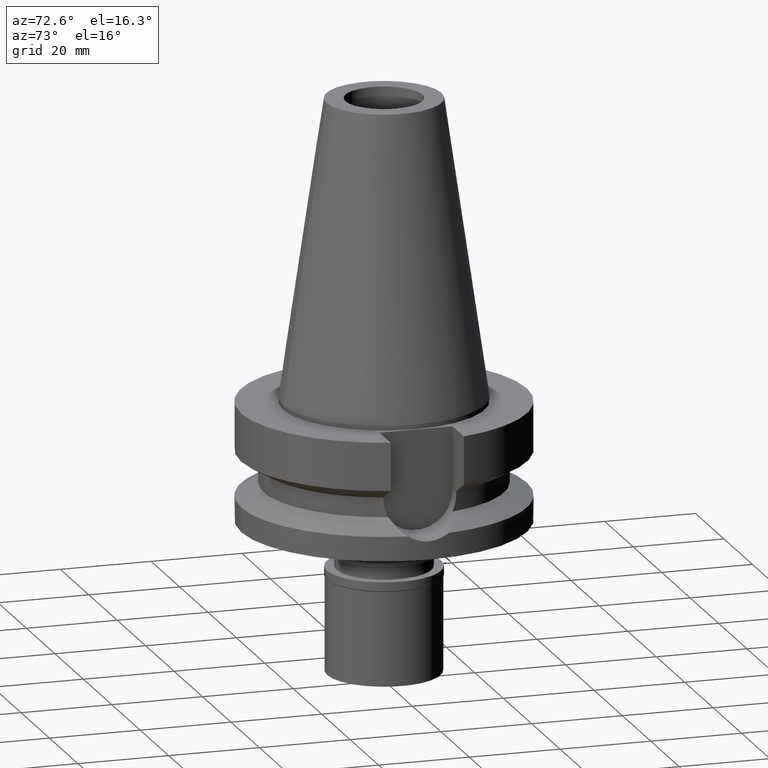
[diagram: clean part render]
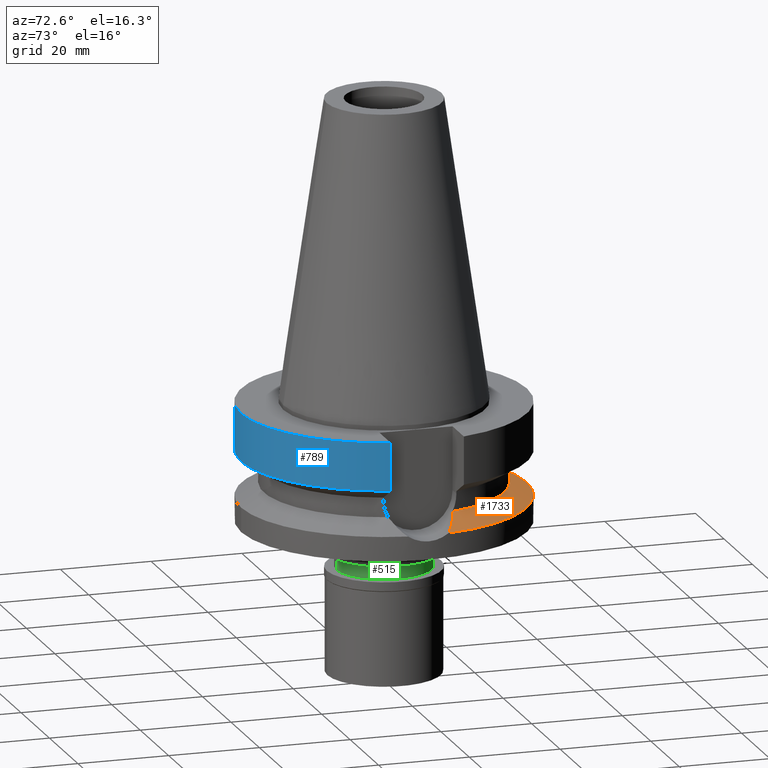
[diagram: same view with three faces highlighted in distinct colors, each labeled with its STEP entity id]
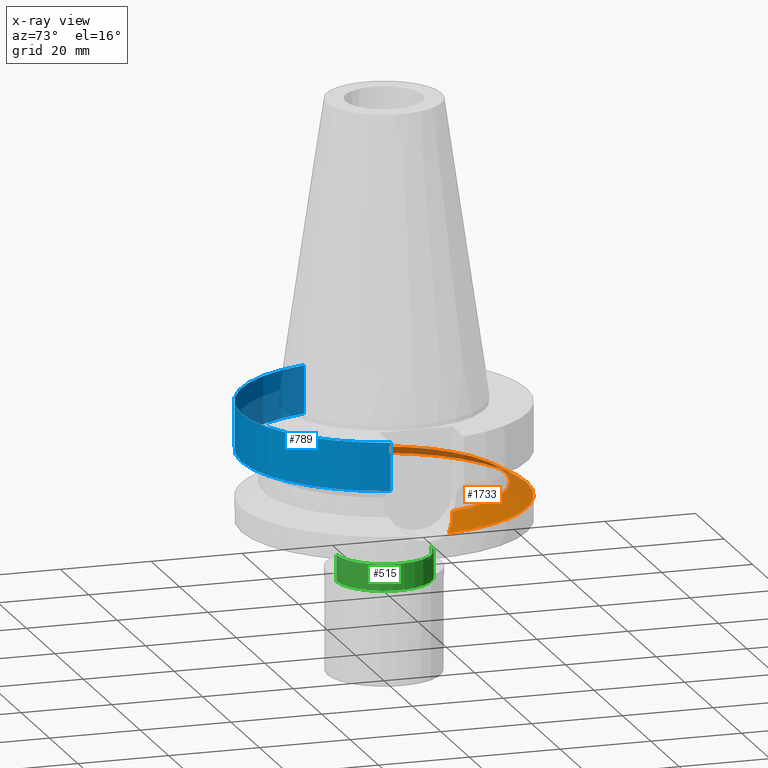
[diagram: x-ray of the same camera — body ghosted, the three highlighted faces saturated]
A machine part, auxiliary view with three faces highlighted in distinct colors.
The next image is the same camera in x-ray (body ghosted, the three faces saturated) — at least one of them is partly hidden behind the body in this view.
Their STEP definitions:

[orange] entity #1733 — the highlighted conical surface has half-angle 60 deg.
#15 = VERTEX_POINT ( 'NONE', #1489 ) ;
#144 = DIRECTION ( 'NONE',  ( 0.0000000000000000000, 0.0000000000000000000, -1.000000000000000000 ) ) ;
#193 = CARTESIAN_POINT ( 'NONE',  ( 28.91478631544401878, 5.849822157289450431, -20.48014178983326872 ) ) ;
#214 = CARTESIAN_POINT ( 'NONE',  ( 25.53175183775000079, 7.097862220092999941, -18.74774300138999905 ) ) ;
#234 = CARTESIAN_POINT ( 'NONE',  ( -28.25313355432080442, 6.152255097921550231, -20.14224581000085124 ) ) ;
#268 = CARTESIAN_POINT ( 'NONE',  ( -31.17899877608999759, 4.485536235554000051, -21.63449434733000132 ) ) ;
#282 = DIRECTION ( 'NONE',  ( 0.9634623335000935818, 0.2678438573619981722, 0.0000000000000000000 ) ) ;
#298 = FACE_OUTER_BOUND ( 'NONE', #629, .T. ) ;
#394 = CARTESIAN_POINT ( 'NONE',  ( 29.24626334610218592, 5.685961615946967029, -20.64939187237719764 ) ) ;
#410 = CARTESIAN_POINT ( 'NONE',  ( 28.97068289350773895, 5.822706596081250296, -20.50868468106680353 ) ) ;
#421 = CARTESIAN_POINT ( 'NONE',  ( 31.17899877608999759, 4.485536235554000051, -21.63449434733000132 ) ) ;
#422 = B_SPLINE_CURVE_WITH_KNOTS ( 'NONE', 3,
 ( #1644, #2547, #2321, #469, #1615, #234, #1408, #3003, #2560, #1892, #918, #2293, #1833, #268 ),
 .UNSPECIFIED., .F., .F.,
 ( 4, 2, 2, 1, 1, 2, 2, 4 ),
 ( 0.0000000000000000000, 0.2500000000000014433, 0.3750000000000021649, 0.4375000000000031086, 0.4687500000000041078, 0.4843750000000042744, 0.5000000000000044409, 1.000000000000000000 ),
 .UNSPECIFIED. ) ;
#469 = CARTESIAN_POINT ( 'NONE',  ( -27.60385672569581317, 6.419486547621249706, -19.81038864997361415 ) ) ;
#629 = EDGE_LOOP ( 'NONE', ( #2817, #1896, #1777, #2706, #1988 ) ) ;
#634 = CARTESIAN_POINT ( 'NONE',  ( 29.92206128542832744, 5.319128670246277224, -20.99422307461593817 ) ) ;
#668 = CARTESIAN_POINT ( 'NONE',  ( 25.53175183775000079, 7.097862220092999941, -18.74774300138999905 ) ) ;
#718 = VERTEX_POINT ( 'NONE', #421 ) ;
#786 = EDGE_CURVE ( 'NONE', #2302, #1302, #422, .T. ) ;
#858 = CARTESIAN_POINT ( 'NONE',  ( -25.53175183775000079, 7.097862220092999941, -18.74774300138999905 ) ) ;
#874 = CARTESIAN_POINT ( 'NONE',  ( 30.85670415875407002, 4.730051056448920654, -21.47041610412382795 ) ) ;
#904 = CARTESIAN_POINT ( 'NONE',  ( -31.17899877608999759, 4.485536235554000051, -21.63449434733000132 ) ) ;
#918 = CARTESIAN_POINT ( 'NONE',  ( -28.83039644676051694, 5.890263416114171591, -20.43704710765186405 ) ) ;
#1008 = DIRECTION ( 'NONE',  ( 0.0000000000000000000, 0.0000000000000000000, -1.000000000000000000 ) ) ;
#1091 = CARTESIAN_POINT ( 'NONE',  ( 31.17899877608999759, 4.485536235554000051, -21.63449434733000132 ) ) ;
#1225 = DIRECTION ( 'NONE',  ( 0.0000000000000000000, 0.0000000000000000000, -1.000000000000000000 ) ) ;
#1273 = CIRCLE ( 'NONE', #2829, 31.50000000000000000 ) ;
#1302 = VERTEX_POINT ( 'NONE', #904 ) ;
#1355 = CARTESIAN_POINT ( 'NONE',  ( 0.0000000000000000000, 0.0000000000000000000, -21.63449434733000132 ) ) ;
#1407 = CARTESIAN_POINT ( 'NONE',  ( 0.0000000000000000000, 0.0000000000000000000, -18.74774300138999905 ) ) ;
#1408 = CARTESIAN_POINT ( 'NONE',  ( -28.44052274112972967, 6.070588432732742845, -20.23795974215284588 ) ) ;
#1489 = CARTESIAN_POINT ( 'NONE',  ( 0.0000000000000000000, 31.50000000000000000, -21.63449434733000132 ) ) ;
#1519 = CONICAL_SURFACE ( 'NONE', #2791, 29.00000000000000000, 1.047197551196400456 ) ;
#1569 = AXIS2_PLACEMENT_3D ( 'NONE', #1407, #1912, #282 ) ;
#1610 = EDGE_CURVE ( 'NONE', #1302, #15, #2109, .T. ) ;
#1615 = CARTESIAN_POINT ( 'NONE',  ( -27.87013977872673109, 6.313923957001473575, -19.94654897211011857 ) ) ;
#1644 = CARTESIAN_POINT ( 'NONE',  ( -25.53175183775000079, 7.097862220092999941, -18.74774300138999905 ) ) ;
#1701 = DIRECTION ( 'NONE',  ( -0.9898094849552905306, 0.1423979757318985240, 0.0000000000000000000 ) ) ;
#1733 = ADVANCED_FACE ( 'NONE', ( #298 ), #1519, .T. ) ;
#1747 = CARTESIAN_POINT ( 'NONE',  ( 26.81595143041433360, 6.744857757718428104, -19.40749723859890707 ) ) ;
#1777 = ORIENTED_EDGE ( 'NONE', *, *, #2194, .F. ) ;
#1809 = CARTESIAN_POINT ( 'NONE',  ( 27.92487151186988825, 6.323143145587966529, -19.97462730608383907 ) ) ;
#1833 = CARTESIAN_POINT ( 'NONE',  ( -30.53441354985303846, 4.974562836271871902, -21.30633990158299085 ) ) ;
#1892 = CARTESIAN_POINT ( 'NONE',  ( -28.80006839025016774, 5.904654934862930915, -20.42156014913065931 ) ) ;
#1896 = ORIENTED_EDGE ( 'NONE', *, *, #2895, .F. ) ;
#1912 = DIRECTION ( 'NONE',  ( 0.0000000000000000000, 0.0000000000000000000, 1.000000000000000000 ) ) ;
#1921 = CARTESIAN_POINT ( 'NONE',  ( 0.0000000000000000000, 0.0000000000000000000, -20.19111867435999841 ) ) ;
#1988 = ORIENTED_EDGE ( 'NONE', *, *, #1610, .F. ) ;
#2109 = CIRCLE ( 'NONE', #2584, 31.50000000000001421 ) ;
#2171 = CARTESIAN_POINT ( 'NONE',  ( 0.0000000000000000000, 0.0000000000000000000, -21.63449434733000132 ) ) ;
#2174 = B_SPLINE_CURVE_WITH_KNOTS ( 'NONE', 3,
 ( #1091, #874, #2749, #634, #2283, #2224, #394, #2492, #410, #193, #2471, #1809, #1747, #668 ),
 .UNSPECIFIED., .F., .F.,
 ( 4, 2, 2, 1, 1, 2, 2, 4 ),
 ( 0.0000000000000000000, 0.2499999999999950595, 0.3749999999999922839, 0.4374999999999908407, 0.4687499999999901190, 0.4843749999999897304, 0.4999999999999892863, 1.000000000000000000 ),
 .UNSPECIFIED. ) ;
#2185 = EDGE_CURVE ( 'NONE', #15, #718, #1273, .T. ) ;
#2194 = EDGE_CURVE ( 'NONE', #718, #2329, #2174, .T. ) ;
#2224 = CARTESIAN_POINT ( 'NONE',  ( 29.40639997502073655, 5.602414900099955020, -20.73113018912559724 ) ) ;
#2283 = CARTESIAN_POINT ( 'NONE',  ( 29.72063074863976340, 5.433722149130143286, -20.89148462187506539 ) ) ;
#2293 = CARTESIAN_POINT ( 'NONE',  ( -29.76094559306956100, 5.445416657840067565, -20.91224353523194779 ) ) ;
#2302 = VERTEX_POINT ( 'NONE', #858 ) ;
#2321 = CARTESIAN_POINT ( 'NONE',  ( -26.77214595869841318, 6.727515509259808013, -19.38461120372449642 ) ) ;
#2329 = VERTEX_POINT ( 'NONE', #214 ) ;
#2471 = CARTESIAN_POINT ( 'NONE',  ( 28.88768834993686241, 5.862875148173405826, -20.46630415397853042 ) ) ;
#2492 = CARTESIAN_POINT ( 'NONE',  ( 29.05415010533970133, 5.781918893356821521, -20.55130490390079245 ) ) ;
#2547 = CARTESIAN_POINT ( 'NONE',  ( -26.17385663682730623, 6.921358613737098153, -19.07762269013936418 ) ) ;
#2560 = CARTESIAN_POINT ( 'NONE',  ( -28.74102841213726478, 5.932449547015266944, -20.39141183310676553 ) ) ;
#2584 = AXIS2_PLACEMENT_3D ( 'NONE', #2171, #1008, #1701 ) ;
#2706 = ORIENTED_EDGE ( 'NONE', *, *, #2185, .F. ) ;
#2749 = CARTESIAN_POINT ( 'NONE',  ( 30.50218295892166154, 4.969973324183234453, -21.28994595421204750 ) ) ;
#2791 = AXIS2_PLACEMENT_3D ( 'NONE', #1921, #1225, #2859 ) ;
#2817 = ORIENTED_EDGE ( 'NONE', *, *, #786, .F. ) ;
#2829 = AXIS2_PLACEMENT_3D ( 'NONE', #1355, #144, #2926 ) ;
#2859 = DIRECTION ( 'NONE',  ( 0.0000000000000000000, -1.000000000000000000, 0.0000000000000000000 ) ) ;
#2882 = CIRCLE ( 'NONE', #1569, 26.49999999999998224 ) ;
#2895 = EDGE_CURVE ( 'NONE', #2329, #2302, #2882, .T. ) ;
#2926 = DIRECTION ( 'NONE',  ( 0.0000000000000000000, 1.000000000000000000, 0.0000000000000000000 ) ) ;
#3003 = CARTESIAN_POINT ( 'NONE',  ( -28.65195498234436400, 5.974063165275939724, -20.34592761177406928 ) ) ;

[blue] entity #789 — the highlighted cylindrical surface (partial cylindrical patch) has radius 31.5 mm, axis along (0, 0, -1).
#143 = ORIENTED_EDGE ( 'NONE', *, *, #2363, .F. ) ;
#206 = FACE_OUTER_BOUND ( 'NONE', #937, .T. ) ;
#302 = LINE ( 'NONE', #756, #597 ) ;
#365 = DIRECTION ( 'NONE',  ( 1.862101846687989612E-08, -7.044556985951960840E-08, 0.9999999999999972244 ) ) ;
#572 = VERTEX_POINT ( 'NONE', #1972 ) ;
#597 = VECTOR ( 'NONE', #910, 1000.000000000000114 ) ;
#670 = VERTEX_POINT ( 'NONE', #1574 ) ;
#693 = CARTESIAN_POINT ( 'NONE',  ( 0.0000000000000000000, 0.0000000000000000000, -1.000000000000000000 ) ) ;
#715 = VERTEX_POINT ( 'NONE', #2705 ) ;
#756 = CARTESIAN_POINT ( 'NONE',  ( 30.45402272279000044, -8.050000000000000711, -1.000000000000000000 ) ) ;
#789 = ADVANCED_FACE ( 'NONE', ( #206 ), #2127, .T. ) ;
#807 = ORIENTED_EDGE ( 'NONE', *, *, #2310, .T. ) ;
#842 = CIRCLE ( 'NONE', #2539, 31.50000000000000000 ) ;
#910 = DIRECTION ( 'NONE',  ( -1.046129815642016142E-07, -3.957617109117065604E-07, -0.9999999999999161782 ) ) ;
#937 = EDGE_LOOP ( 'NONE', ( #2566, #807, #143, #1090 ) ) ;
#1090 = ORIENTED_EDGE ( 'NONE', *, *, #2763, .T. ) ;
#1177 = CIRCLE ( 'NONE', #1851, 31.50000000000000000 ) ;
#1381 = CARTESIAN_POINT ( 'NONE',  ( 0.0000000000000000000, 0.0000000000000000000, 0.0000000000000000000 ) ) ;
#1574 = CARTESIAN_POINT ( 'NONE',  ( -30.45402272279000044, -8.050000000000000711, -1.000000000000000000 ) ) ;
#1614 = DIRECTION ( 'NONE',  ( 0.0000000000000000000, 0.0000000000000000000, -1.000000000000000000 ) ) ;
#1624 = DIRECTION ( 'NONE',  ( 0.0000000000000000000, 0.0000000000000000000, 1.000000000000000000 ) ) ;
#1810 = EDGE_CURVE ( 'NONE', #715, #670, #2014, .T. ) ;
#1851 = AXIS2_PLACEMENT_3D ( 'NONE', #693, #1614, #2054 ) ;
#1972 = CARTESIAN_POINT ( 'NONE',  ( 30.45402272279000044, -8.050000000000000711, -1.000000000000000000 ) ) ;
#2014 = LINE ( 'NONE', #2764, #2537 ) ;
#2054 = DIRECTION ( 'NONE',  ( 0.0000000000000000000, -1.000000000000000000, 0.0000000000000000000 ) ) ;
#2127 = CYLINDRICAL_SURFACE ( 'NONE', #2200, 31.50000000000000000 ) ;
#2200 = AXIS2_PLACEMENT_3D ( 'NONE', #1381, #2828, #2772 ) ;
#2223 = VERTEX_POINT ( 'NONE', #2444 ) ;
#2310 = EDGE_CURVE ( 'NONE', #715, #2223, #842, .T. ) ;
#2363 = EDGE_CURVE ( 'NONE', #572, #2223, #302, .T. ) ;
#2444 = CARTESIAN_POINT ( 'NONE',  ( 30.45402272279000044, -8.049999999999000622, -11.56550565266999975 ) ) ;
#2456 = CARTESIAN_POINT ( 'NONE',  ( 0.0000000000000000000, 0.0000000000000000000, -11.56550565266999975 ) ) ;
#2537 = VECTOR ( 'NONE', #365, 1000.000000000000114 ) ;
#2539 = AXIS2_PLACEMENT_3D ( 'NONE', #2456, #1624, #2628 ) ;
#2566 = ORIENTED_EDGE ( 'NONE', *, *, #1810, .F. ) ;
#2628 = DIRECTION ( 'NONE',  ( 0.0000000000000000000, -1.000000000000000000, 0.0000000000000000000 ) ) ;
#2705 = CARTESIAN_POINT ( 'NONE',  ( -30.45402291952999718, -8.049999255706000056, -11.56551235635999930 ) ) ;
#2763 = EDGE_CURVE ( 'NONE', #572, #670, #1177, .T. ) ;
#2764 = CARTESIAN_POINT ( 'NONE',  ( -30.45402291952999718, -8.049999255706000056, -11.56551235635999930 ) ) ;
#2772 = DIRECTION ( 'NONE',  ( 0.0000000000000000000, -1.000000000000000000, 0.0000000000000000000 ) ) ;
#2828 = DIRECTION ( 'NONE',  ( 0.0000000000000000000, 0.0000000000000000000, -1.000000000000000000 ) ) ;

[green] entity #515 — the highlighted cylindrical surface (partial cylindrical patch) has radius 10.5 mm, axis along (0, 0, -1).
#93 = AXIS2_PLACEMENT_3D ( 'NONE', #1748, #608, #1526 ) ;
#122 = LINE ( 'NONE', #1297, #1082 ) ;
#237 = EDGE_CURVE ( 'NONE', #943, #1523, #1562, .T. ) ;
#496 = DIRECTION ( 'NONE',  ( 0.0000000000000000000, 0.0000000000000000000, -1.000000000000000000 ) ) ;
#515 = ADVANCED_FACE ( 'NONE', ( #2027 ), #2928, .T. ) ;
#604 = EDGE_CURVE ( 'NONE', #2021, #2923, #1708, .T. ) ;
#606 = CARTESIAN_POINT ( 'NONE',  ( 0.0000000000000000000, 10.50000000000000000, -33.79999999999999716 ) ) ;
#608 = DIRECTION ( 'NONE',  ( 0.0000000000000000000, 0.0000000000000000000, 1.000000000000000000 ) ) ;
#943 = VERTEX_POINT ( 'NONE', #606 ) ;
#1019 = DIRECTION ( 'NONE',  ( 0.0000000000000000000, 0.0000000000000000000, -1.000000000000000000 ) ) ;
#1061 = CARTESIAN_POINT ( 'NONE',  ( 0.0000000000000000000, 0.0000000000000000000, 0.0000000000000000000 ) ) ;
#1082 = VECTOR ( 'NONE', #1743, 1000.000000000000000 ) ;
#1297 = CARTESIAN_POINT ( 'NONE',  ( 0.0000000000000000000, -10.50000000000000000, -33.79999999999999716 ) ) ;
#1326 = DIRECTION ( 'NONE',  ( 0.0000000000000000000, 0.0000000000000000000, -1.000000000000000000 ) ) ;
#1385 = ORIENTED_EDGE ( 'NONE', *, *, #604, .T. ) ;
#1523 = VERTEX_POINT ( 'NONE', #1910 ) ;
#1526 = DIRECTION ( 'NONE',  ( 0.0000000000000000000, -1.000000000000000000, 0.0000000000000000000 ) ) ;
#1562 = CIRCLE ( 'NONE', #2730, 10.50000000000000000 ) ;
#1601 = EDGE_LOOP ( 'NONE', ( #2312, #1656, #1385, #1915 ) ) ;
#1612 = EDGE_CURVE ( 'NONE', #943, #2923, #2159, .T. ) ;
#1656 = ORIENTED_EDGE ( 'NONE', *, *, #2592, .T. ) ;
#1708 = CIRCLE ( 'NONE', #93, 10.50000000000000000 ) ;
#1743 = DIRECTION ( 'NONE',  ( 0.0000000000000000000, 0.0000000000000000000, -1.000000000000000000 ) ) ;
#1748 = CARTESIAN_POINT ( 'NONE',  ( 0.0000000000000000000, 0.0000000000000000000, -39.60000000000000142 ) ) ;
#1780 = DIRECTION ( 'NONE',  ( 0.0000000000000000000, -1.000000000000000000, 0.0000000000000000000 ) ) ;
#1910 = CARTESIAN_POINT ( 'NONE',  ( 0.0000000000000000000, -10.50000000000000000, -33.79999999999999716 ) ) ;
#1915 = ORIENTED_EDGE ( 'NONE', *, *, #1612, .F. ) ;
#2021 = VERTEX_POINT ( 'NONE', #2659 ) ;
#2027 = FACE_OUTER_BOUND ( 'NONE', #1601, .T. ) ;
#2159 = LINE ( 'NONE', #2202, #2297 ) ;
#2202 = CARTESIAN_POINT ( 'NONE',  ( 0.0000000000000000000, 10.50000000000000000, -33.79999999999999716 ) ) ;
#2287 = CARTESIAN_POINT ( 'NONE',  ( 0.0000000000000000000, 0.0000000000000000000, -33.79999999999999716 ) ) ;
#2297 = VECTOR ( 'NONE', #1019, 1000.000000000000000 ) ;
#2312 = ORIENTED_EDGE ( 'NONE', *, *, #237, .T. ) ;
#2426 = AXIS2_PLACEMENT_3D ( 'NONE', #1061, #1326, #1780 ) ;
#2513 = DIRECTION ( 'NONE',  ( 0.0000000000000000000, 1.000000000000000000, 0.0000000000000000000 ) ) ;
#2592 = EDGE_CURVE ( 'NONE', #1523, #2021, #122, .T. ) ;
#2659 = CARTESIAN_POINT ( 'NONE',  ( 0.0000000000000000000, -10.50000000000000000, -39.60000000000000142 ) ) ;
#2730 = AXIS2_PLACEMENT_3D ( 'NONE', #2287, #496, #2513 ) ;
#2847 = CARTESIAN_POINT ( 'NONE',  ( 0.0000000000000000000, 10.50000000000000000, -39.60000000000000142 ) ) ;
#2923 = VERTEX_POINT ( 'NONE', #2847 ) ;
#2928 = CYLINDRICAL_SURFACE ( 'NONE', #2426, 10.50000000000000000 ) ;